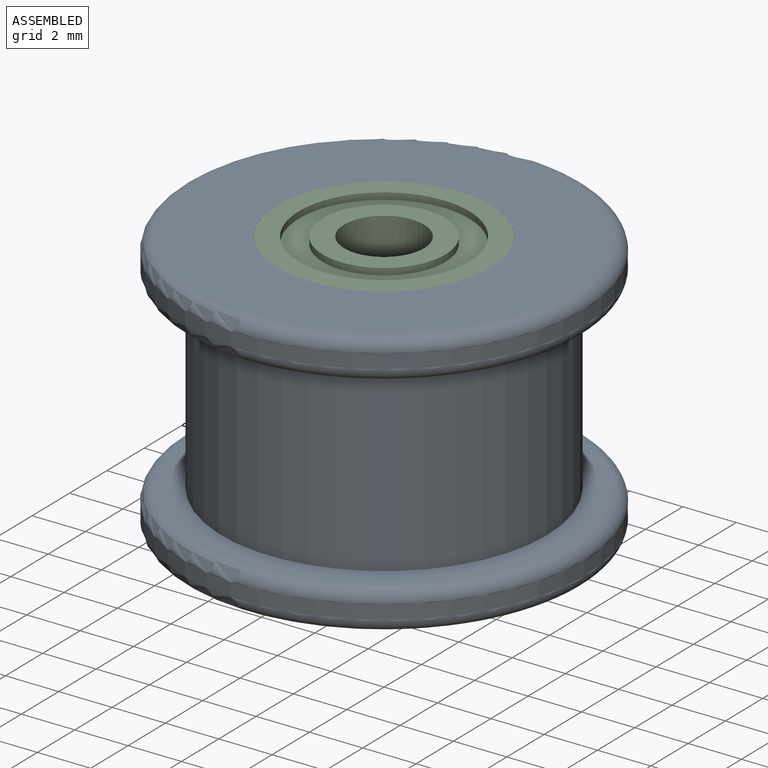
[diagram: assembled view]
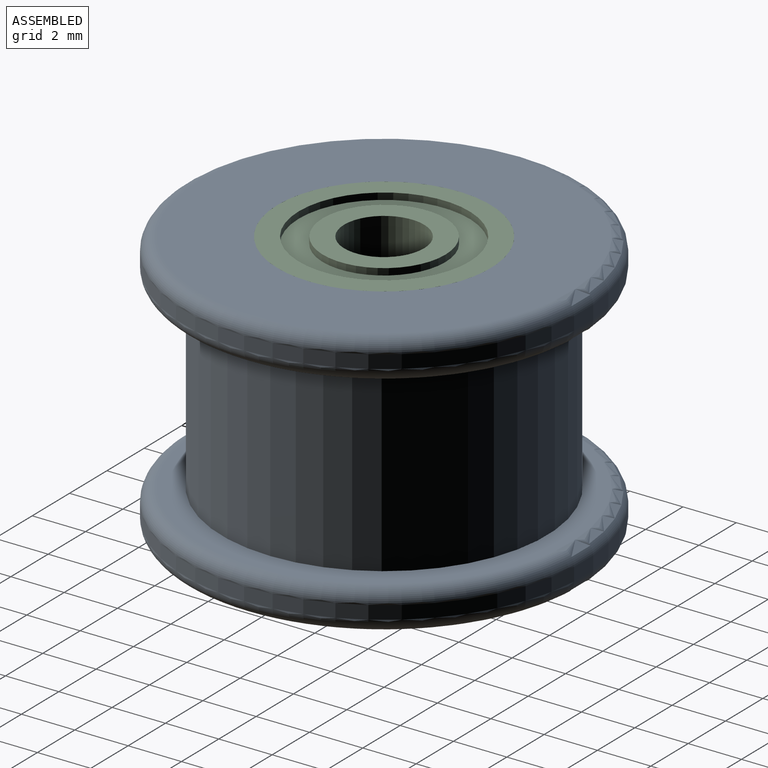
[diagram: assembled view, second angle]
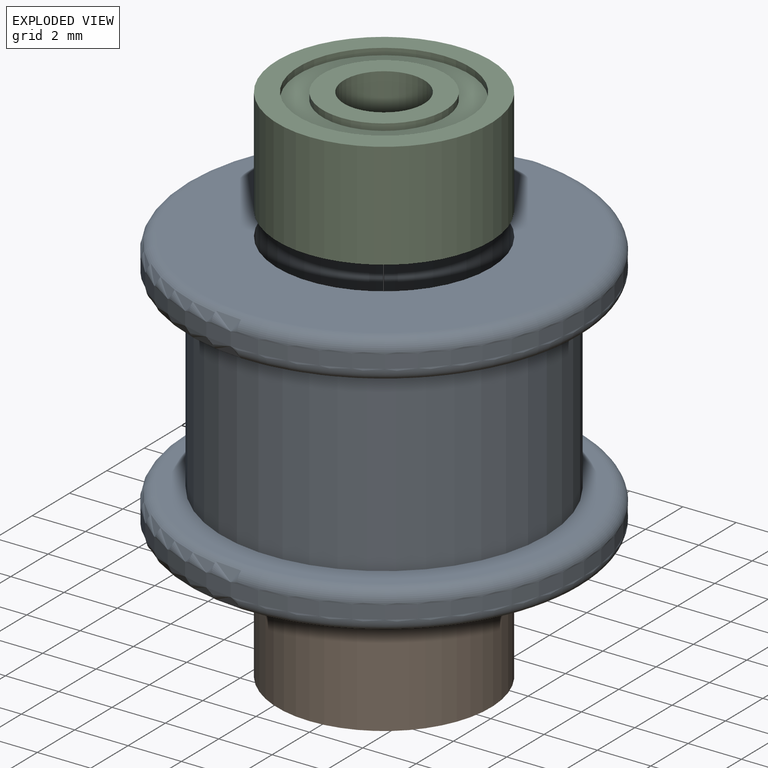
[diagram: exploded view]
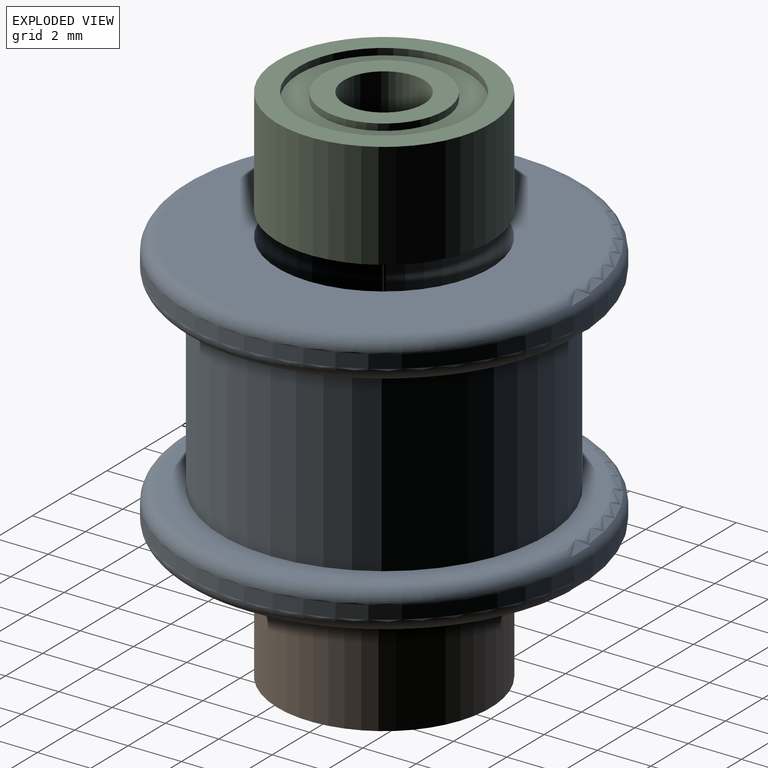
[diagram: exploded view, second angle]
ASSEMBLY  parts=3 mates=2
PART A: 16 faces, bbox 16.2x16.2x10 mm
  f0: cylinder r=1.5mm len=3mm, axis (0,0,1), area 18.8mm2, adj f13,f14
  f1: cylinder r=6.1mm len=12.2mm, axis (0,0,-1), area 268.3mm2, adj f2,f11
  f2: plane 14x14mm, normal (0,0,-1), area 37mm2, adj f1,f3
  f3: torus R=7mm, axis (0,0,-1), area 36.1mm2, adj f2,f4
  f4: cylinder r=7.5mm len=15mm, axis (0,0,-1), area 23.6mm2, adj f3,f5
  f5: torus R=7mm, axis (0,0,-1), area 36.1mm2, adj f4,f6
  f6: plane 14x14mm, normal (0,0,1), area 103.7mm2, adj f5,f12
  f7: plane 14x14mm, normal (0,0,-1), area 103.7mm2, adj f8,f15
  f8: torus R=7mm, axis (0,0,-1), area 36.1mm2, adj f7,f9
  f9: cylinder r=7.5mm len=15mm, axis (0,0,-1), area 23.6mm2, adj f8,f10
  f10: torus R=7mm, axis (0,0,-1), area 36.1mm2, adj f9,f11
  f11: plane 14x14mm, normal (0,0,1), area 37mm2, adj f1,f10
  f12: cylinder r=4mm len=8mm, axis (0,0,-1), area 100.5mm2, adj f6,f13
  f13: plane 8x8mm, normal (0,0,1), area 43.2mm2, adj f0,f12
  f14: plane 8x8mm, normal (0,0,-1), area 43.2mm2, adj f0,f15
  f15: cylinder r=4mm len=8mm, axis (0,0,1), area 100.5mm2, adj f7,f14
PART B: 12 faces, bbox 8x4x8 mm
  f0: cylinder r=2.3mm len=4.6mm, axis (0,1,0), area 3.6mm2, adj f4,f11
  f1: cylinder r=1.5mm len=4mm, axis (0,1,0), area 37.7mm2, adj f3,f4
  f2: cylinder r=2.3mm len=4.6mm, axis (0,1,0), area 3.6mm2, adj f3,f10
  f3: plane 4.6x4.6mm, normal (0,-1,0), area 9.6mm2, adj f1,f2
  f4: plane 4.6x4.6mm, normal (0,1,0), area 9.6mm2, adj f0,f1
  f5: cylinder r=3.2mm len=6.4mm, axis (0,1,0), area 5mm2, adj f9,f11
  f6: cylinder r=3.2mm len=6.4mm, axis (0,1,0), area 5mm2, adj f8,f10
  f7: cylinder r=4mm len=8mm, axis (0,1,0), area 100.5mm2, adj f8,f9
  f8: plane 8x8mm, normal (0,-1,0), area 18.1mm2, adj f6,f7
  f9: plane 8x8mm, normal (0,1,0), area 18.1mm2, adj f5,f7
  f10: plane 6.4x6.4mm, normal (0,-1,0), area 15.6mm2, adj f2,f6
  f11: plane 6.4x6.4mm, normal (0,1,0), area 15.6mm2, adj f0,f5
PART C: same geometry as B
PLACE A t=(0,0,-5)mm
PLACE B rot(axis=(-1,0,0),90deg) t=(0,0,-8)mm
PLACE C rot(axis=(-1,0,0),90deg) t=(0,0,-2)mm
MATE fastened A.f12 <-> C.f7  axis (0,0,1) through (0,0,0)mm
MATE fastened B.f7 <-> A.f3  axis (0,0,-1) through (0,0,-10)mm
